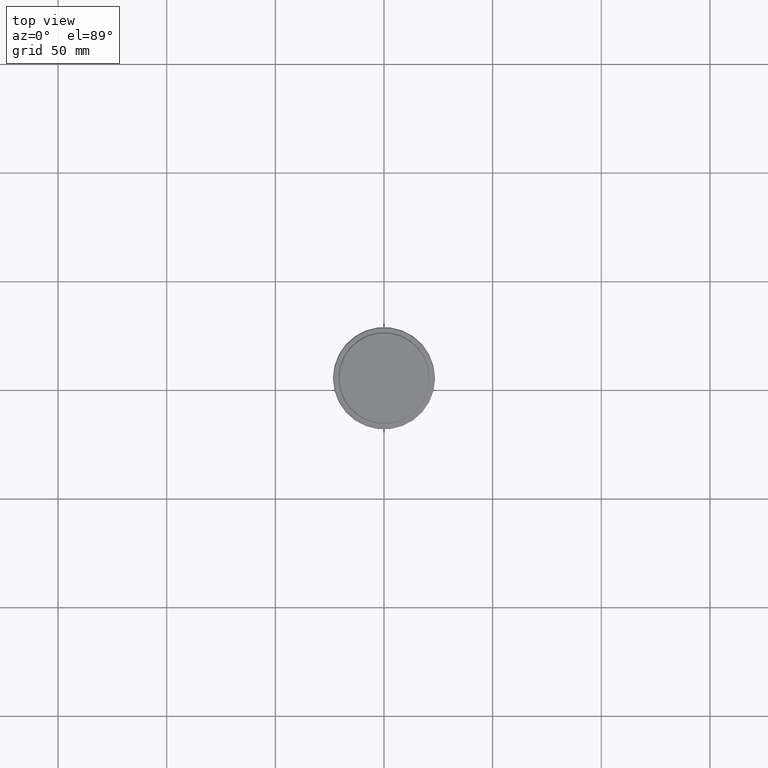
[diagram: clean part render]
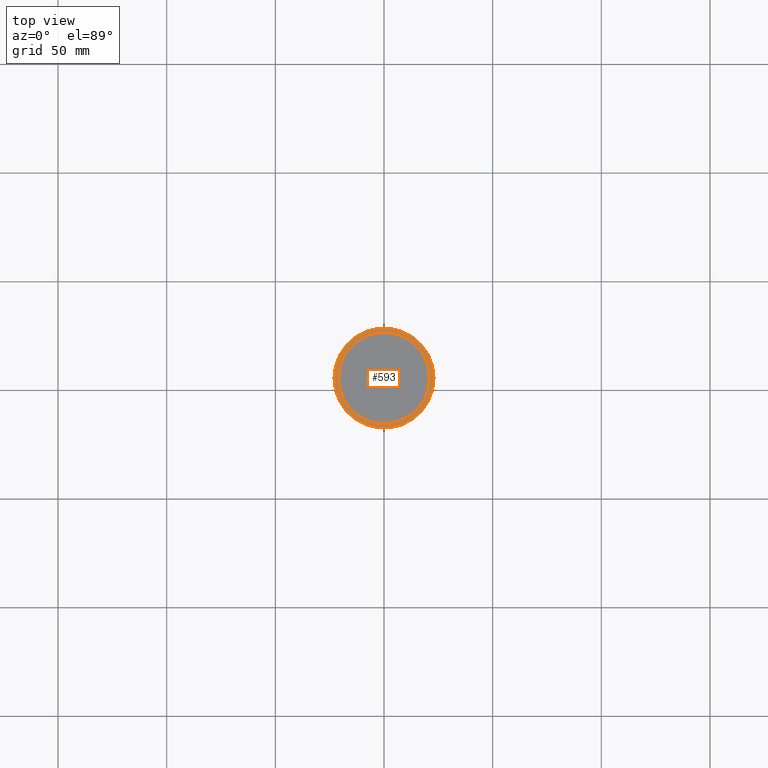
[diagram: same view with one face highlighted and labeled with its STEP entity id]
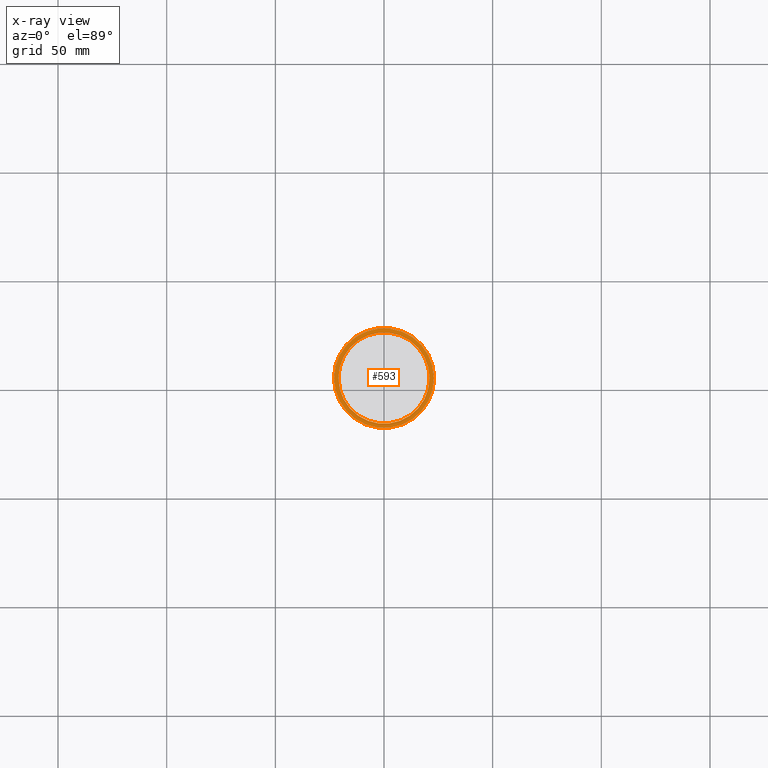
[diagram: x-ray of the same camera — body ghosted, the highlighted face saturated]
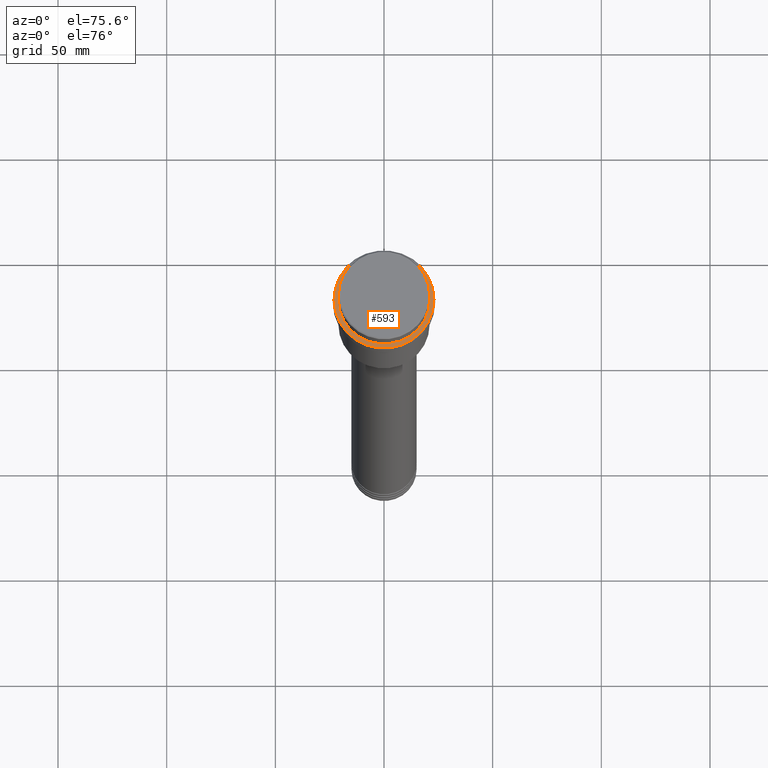
[diagram: same view with one face highlighted and labeled with its STEP entity id]
A machine part, top view. The second image highlights one B-rep face of the part: STEP entity #593.
The next image is the same camera in x-ray: the body ghosted, the highlighted face saturated — about 0% of this face is hidden behind the body in this view.
A second angle (auxiliary view) of the same face is appended — the face is thin or edge-on in the first view.
In plain terms, the highlighted planar face has unit normal (0, -0, 1).
Its self-contained STEP definition (entity closure, byte-faithful):
#75 = ORIENTED_EDGE ( 'NONE', *, *, #938, .T. ) ;
#91 = DIRECTION ( 'NONE',  ( 1.000000000000000000, 0.000000000000000000, 0.000000000000000000 ) ) ;
#109 = DIRECTION ( 'NONE',  ( 0.000000000000000000, 0.000000000000000000, -1.000000000000000000 ) ) ;
#126 = CARTESIAN_POINT ( 'NONE',  ( 0.000000000000000000, 0.000000000000000000, -9.000000000000001776 ) ) ;
#141 = EDGE_CURVE ( 'NONE', #831, #403, #1197, .T. ) ;
#155 = CARTESIAN_POINT ( 'NONE',  ( 0.000000000000000000, 0.000000000000000000, -9.000000000000001776 ) ) ;
#389 = AXIS2_PLACEMENT_3D ( 'NONE', #1354, #507, #822 ) ;
#400 = FACE_OUTER_BOUND ( 'NONE', #1245, .T. ) ;
#403 = VERTEX_POINT ( 'NONE', #1055 ) ;
#441 = DIRECTION ( 'NONE',  ( 1.000000000000000000, 0.000000000000000000, 0.000000000000000000 ) ) ;
#460 = DIRECTION ( 'NONE',  ( -0.000000000000000000, -0.000000000000000000, 1.000000000000000000 ) ) ;
#480 = AXIS2_PLACEMENT_3D ( 'NONE', #856, #862, #91 ) ;
#493 = VERTEX_POINT ( 'NONE', #1208 ) ;
#503 = AXIS2_PLACEMENT_3D ( 'NONE', #126, #109, #1196 ) ;
#507 = DIRECTION ( 'NONE',  ( 0.000000000000000000, -0.000000000000000000, 1.000000000000000000 ) ) ;
#553 = CARTESIAN_POINT ( 'NONE',  ( 0.000000000000000000, 0.000000000000000000, -9.000000000000001776 ) ) ;
#590 = DIRECTION ( 'NONE',  ( -0.000000000000000000, -0.000000000000000000, 1.000000000000000000 ) ) ;
#593 = ADVANCED_FACE ( 'NONE', ( #400, #711 ), #716, .T. ) ;
#697 = EDGE_CURVE ( 'NONE', #493, #1246, #1105, .T. ) ;
#711 = FACE_BOUND ( 'NONE', #749, .T. ) ;
#716 = PLANE ( 'NONE',  #389 ) ;
#749 = EDGE_LOOP ( 'NONE', ( #75, #1298 ) ) ;
#813 = ORIENTED_EDGE ( 'NONE', *, *, #141, .T. ) ;
#822 = DIRECTION ( 'NONE',  ( 1.000000000000000000, 0.000000000000000000, 0.000000000000000000 ) ) ;
#831 = VERTEX_POINT ( 'NONE', #1107 ) ;
#856 = CARTESIAN_POINT ( 'NONE',  ( 0.000000000000000000, 0.000000000000000000, -9.000000000000001776 ) ) ;
#862 = DIRECTION ( 'NONE',  ( 0.000000000000000000, 0.000000000000000000, -1.000000000000000000 ) ) ;
#912 = DIRECTION ( 'NONE',  ( 1.000000000000000000, 0.000000000000000000, 0.000000000000000000 ) ) ;
#938 = EDGE_CURVE ( 'NONE', #1246, #493, #995, .T. ) ;
#995 = CIRCLE ( 'NONE', #503, 20.99999999999999289 ) ;
#997 = CIRCLE ( 'NONE', #1203, 23.00000000000005329 ) ;
#1055 = CARTESIAN_POINT ( 'NONE',  ( 23.00000000000005329, 2.847303808017599689E-15, -9.000000000000001776 ) ) ;
#1105 = CIRCLE ( 'NONE', #480, 20.99999999999999289 ) ;
#1107 = CARTESIAN_POINT ( 'NONE',  ( -23.00000000000005329, 0.000000000000000000, -9.000000000000001776 ) ) ;
#1174 = CARTESIAN_POINT ( 'NONE',  ( 20.99999999999999289, 0.000000000000000000, -9.000000000000001776 ) ) ;
#1175 = AXIS2_PLACEMENT_3D ( 'NONE', #155, #590, #912 ) ;
#1196 = DIRECTION ( 'NONE',  ( 1.000000000000000000, 0.000000000000000000, 0.000000000000000000 ) ) ;
#1197 = CIRCLE ( 'NONE', #1175, 23.00000000000005329 ) ;
#1203 = AXIS2_PLACEMENT_3D ( 'NONE', #553, #460, #441 ) ;
#1208 = CARTESIAN_POINT ( 'NONE',  ( -20.99999999999999289, 2.571758278209440872E-15, -9.000000000000001776 ) ) ;
#1245 = EDGE_LOOP ( 'NONE', ( #813, #1364 ) ) ;
#1246 = VERTEX_POINT ( 'NONE', #1174 ) ;
#1298 = ORIENTED_EDGE ( 'NONE', *, *, #697, .T. ) ;
#1331 = EDGE_CURVE ( 'NONE', #403, #831, #997, .T. ) ;
#1354 = CARTESIAN_POINT ( 'NONE',  ( 0.000000000000000000, 20.49999999999999645, -9.000000000000001776 ) ) ;
#1364 = ORIENTED_EDGE ( 'NONE', *, *, #1331, .T. ) ;